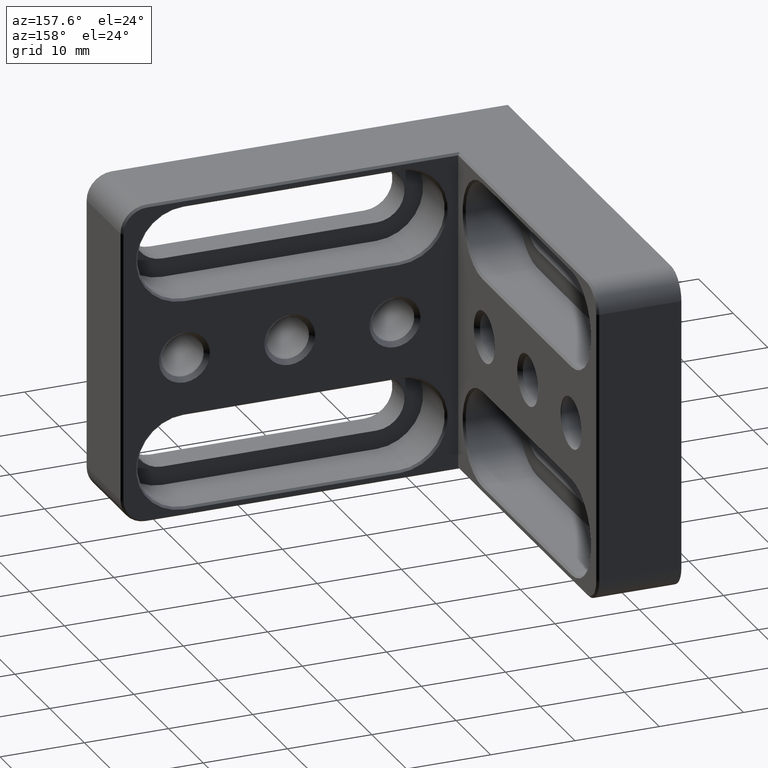
[diagram: clean part render]
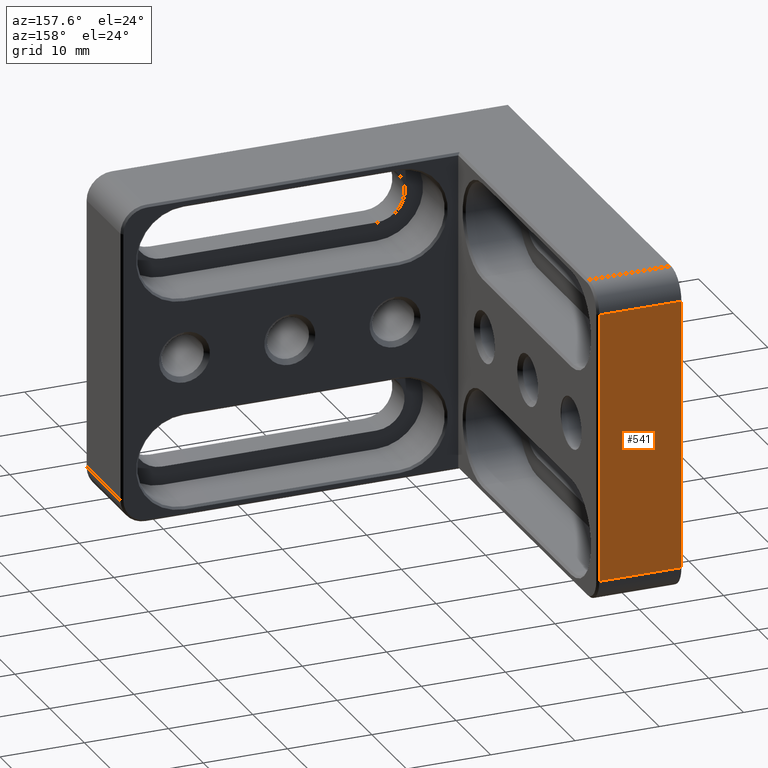
[diagram: same view with one face highlighted and labeled with its STEP entity id]
A machine part, auxiliary view. The second image highlights one B-rep face of the part: STEP entity #541.
In plain terms, the highlighted planar face has unit normal (0, 1, 0).
Its self-contained STEP definition (entity closure, byte-faithful):
#47 = CARTESIAN_POINT ( 'NONE',  ( -15.25000000000000178, 50.00000000000000000, -16.00000000000000000 ) ) ;
#139 = LINE ( 'NONE', #2568, #662 ) ;
#314 = ORIENTED_EDGE ( 'NONE', *, *, #1635, .T. ) ;
#409 = ORIENTED_EDGE ( 'NONE', *, *, #1553, .T. ) ;
#412 = EDGE_LOOP ( 'NONE', ( #1296, #314, #2215, #409 ) ) ;
#416 = CARTESIAN_POINT ( 'NONE',  ( -15.24999999999999645, 50.00000000000000000, 16.00000000000000000 ) ) ;
#541 = ADVANCED_FACE ( 'NONE', ( #2396 ), #987, .T. ) ;
#556 = CARTESIAN_POINT ( 'NONE',  ( -15.00000000000000355, 50.00000000000000000, 16.00000000000000000 ) ) ;
#618 = VECTOR ( 'NONE', #1434, 1000.000000000000000 ) ;
#662 = VECTOR ( 'NONE', #1711, 1000.000000000000000 ) ;
#714 = AXIS2_PLACEMENT_3D ( 'NONE', #998, #1410, #1818 ) ;
#771 = DIRECTION ( 'NONE',  ( 1.000000000000000000, -0.000000000000000000, 0.000000000000000000 ) ) ;
#781 = VERTEX_POINT ( 'NONE', #47 ) ;
#830 = CARTESIAN_POINT ( 'NONE',  ( -25.00000000000000711, 50.00000000000000000, -16.00000000000000000 ) ) ;
#987 = PLANE ( 'NONE',  #714 ) ;
#998 = CARTESIAN_POINT ( 'NONE',  ( 0.000000000000000000, 50.00000000000000000, 0.000000000000000000 ) ) ;
#1113 = VERTEX_POINT ( 'NONE', #1676 ) ;
#1227 = LINE ( 'NONE', #2621, #1746 ) ;
#1296 = ORIENTED_EDGE ( 'NONE', *, *, #1842, .T. ) ;
#1329 = VERTEX_POINT ( 'NONE', #830 ) ;
#1408 = DIRECTION ( 'NONE',  ( -1.000000000000000000, 0.000000000000000000, 0.000000000000000000 ) ) ;
#1410 = DIRECTION ( 'NONE',  ( 0.000000000000000000, 1.000000000000000000, 0.000000000000000000 ) ) ;
#1434 = DIRECTION ( 'NONE',  ( -1.369518533665900312E-16, 0.000000000000000000, -1.000000000000000000 ) ) ;
#1553 = EDGE_CURVE ( 'NONE', #1329, #1113, #139, .T. ) ;
#1634 = VERTEX_POINT ( 'NONE', #416 ) ;
#1635 = EDGE_CURVE ( 'NONE', #1634, #781, #2035, .T. ) ;
#1654 = EDGE_CURVE ( 'NONE', #781, #1329, #1227, .T. ) ;
#1664 = VECTOR ( 'NONE', #771, 1000.000000000000000 ) ;
#1676 = CARTESIAN_POINT ( 'NONE',  ( -25.00000000000000711, 50.00000000000000000, 16.00000000000000355 ) ) ;
#1711 = DIRECTION ( 'NONE',  ( 0.000000000000000000, 0.000000000000000000, 1.000000000000000000 ) ) ;
#1746 = VECTOR ( 'NONE', #1408, 1000.000000000000000 ) ;
#1818 = DIRECTION ( 'NONE',  ( 0.000000000000000000, -0.000000000000000000, 1.000000000000000000 ) ) ;
#1842 = EDGE_CURVE ( 'NONE', #1113, #1634, #2154, .T. ) ;
#2021 = CARTESIAN_POINT ( 'NONE',  ( -15.25000000000000178, 50.00000000000000000, -16.00000000000000000 ) ) ;
#2035 = LINE ( 'NONE', #2021, #618 ) ;
#2154 = LINE ( 'NONE', #556, #1664 ) ;
#2215 = ORIENTED_EDGE ( 'NONE', *, *, #1654, .T. ) ;
#2396 = FACE_OUTER_BOUND ( 'NONE', #412, .T. ) ;
#2568 = CARTESIAN_POINT ( 'NONE',  ( -25.00000000000000711, 50.00000000000000000, -19.00000000000000000 ) ) ;
#2621 = CARTESIAN_POINT ( 'NONE',  ( -25.00000000000000711, 50.00000000000000000, -16.00000000000000000 ) ) ;